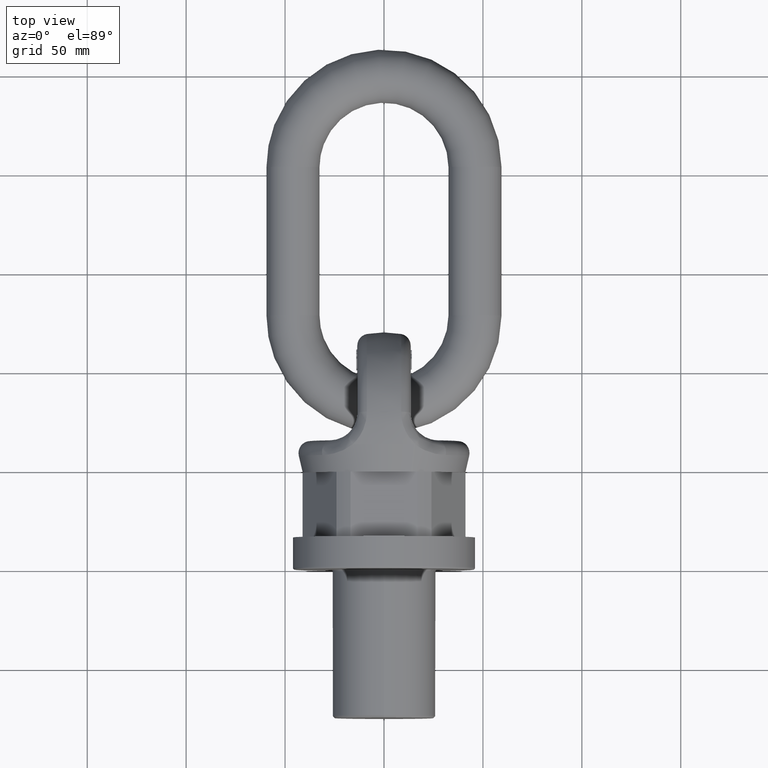
[diagram: clean part render]
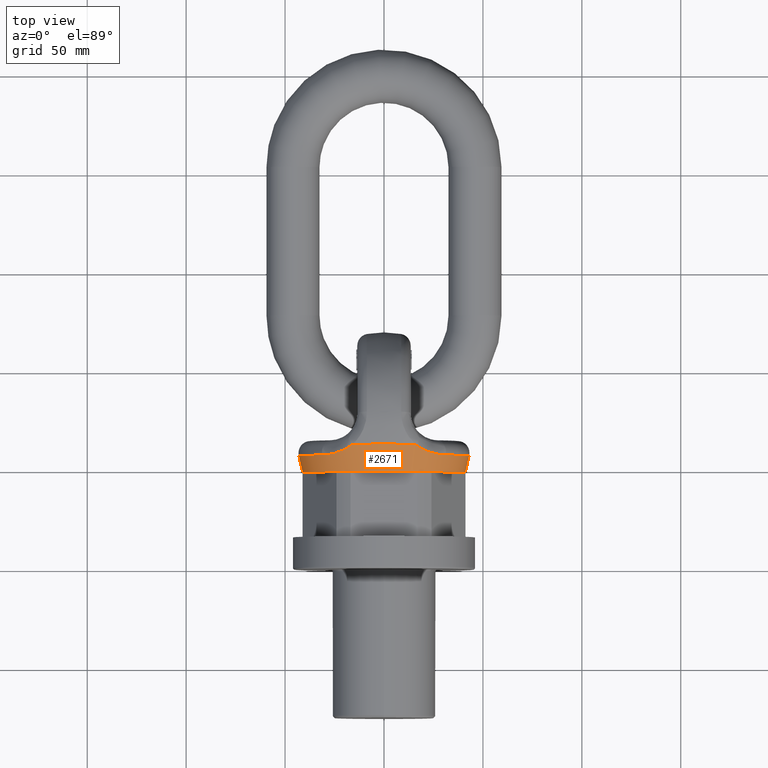
[diagram: same view with one face highlighted and labeled with its STEP entity id]
A machine part, top view. The second image highlights one B-rep face of the part: STEP entity #2671.
In plain terms, the highlighted conical surface has half-angle 14.152 deg.
Its self-contained STEP definition (entity closure, byte-faithful):
#361=B_SPLINE_CURVE_WITH_KNOTS('',3,(#7058,#7059,#7060,#7061,#7062,#7063),
 .UNSPECIFIED.,.F.,.F.,(4,2,4),(0.,0.5,1.),.UNSPECIFIED.);
#362=B_SPLINE_CURVE_WITH_KNOTS('',3,(#7065,#7066,#7067,#7068,#7069,#7070),
 .UNSPECIFIED.,.F.,.F.,(4,2,4),(0.,0.5,1.),.UNSPECIFIED.);
#363=B_SPLINE_CURVE_WITH_KNOTS('',3,(#7074,#7075,#7076,#7077,#7078,#7079),
 .UNSPECIFIED.,.F.,.F.,(4,2,4),(0.,0.5,1.),.UNSPECIFIED.);
#364=B_SPLINE_CURVE_WITH_KNOTS('',3,(#7080,#7081,#7082,#7083,#7084,#7085),
 .UNSPECIFIED.,.F.,.F.,(4,2,4),(0.,0.5,1.),.UNSPECIFIED.);
#1795=CONICAL_SURFACE('',#5661,41.1362066797608,14.1515047841339);
#2671=ADVANCED_FACE('',(#3016,#3017),#1795,.T.);
#3016=FACE_BOUND('',#3106,.T.);
#3017=FACE_BOUND('',#3107,.T.);
#3106=EDGE_LOOP('',(#3530));
#3107=EDGE_LOOP('',(#3531,#3532,#3533,#3534,#3535,#3536,#3537,#3538));
#3530=ORIENTED_EDGE('',*,*,#5074,.F.);
#3531=ORIENTED_EDGE('',*,*,#5075,.T.);
#3532=ORIENTED_EDGE('',*,*,#5066,.T.);
#3533=ORIENTED_EDGE('',*,*,#5076,.T.);
#3534=ORIENTED_EDGE('',*,*,#5077,.T.);
#3535=ORIENTED_EDGE('',*,*,#5078,.T.);
#3536=ORIENTED_EDGE('',*,*,#5070,.T.);
#3537=ORIENTED_EDGE('',*,*,#5079,.T.);
#3538=ORIENTED_EDGE('',*,*,#5080,.T.);
#4653=VERTEX_POINT('',#7019);
#4654=VERTEX_POINT('',#7020);
#4657=VERTEX_POINT('',#7036);
#4658=VERTEX_POINT('',#7038);
#4661=VERTEX_POINT('',#7056);
#4662=VERTEX_POINT('',#7064);
#4663=VERTEX_POINT('',#7071);
#4664=VERTEX_POINT('',#7073);
#4665=VERTEX_POINT('',#7086);
#5066=EDGE_CURVE('',#4653,#4654,#5561,.T.);
#5070=EDGE_CURVE('',#4658,#4657,#5563,.T.);
#5074=EDGE_CURVE('',#4661,#4661,#5565,.T.);
#5075=EDGE_CURVE('',#4662,#4653,#361,.T.);
#5076=EDGE_CURVE('',#4654,#4663,#362,.T.);
#5077=EDGE_CURVE('',#4663,#4664,#5566,.T.);
#5078=EDGE_CURVE('',#4664,#4658,#363,.T.);
#5079=EDGE_CURVE('',#4657,#4665,#364,.T.);
#5080=EDGE_CURVE('',#4665,#4662,#5567,.T.);
#5561=CIRCLE('',#5652,44.6040210296982);
#5563=CIRCLE('',#5654,44.6040210296982);
#5565=CIRCLE('',#5657,41.1362066797608);
#5566=CIRCLE('',#5659,43.2877245192613);
#5567=CIRCLE('',#5660,43.2877245192613);
#5652=AXIS2_PLACEMENT_3D('',#7018,#5967,#5968);
#5654=AXIS2_PLACEMENT_3D('',#7037,#5971,#5972);
#5657=AXIS2_PLACEMENT_3D('',#7055,#5977,#5978);
#5659=AXIS2_PLACEMENT_3D('',#7072,#5981,#5982);
#5660=AXIS2_PLACEMENT_3D('',#7087,#5983,#5984);
#5661=AXIS2_PLACEMENT_3D('',#7088,#5985,#5986);
#5967=DIRECTION('',(0.,-1.,0.));
#5968=DIRECTION('',(0.,0.,-1.));
#5971=DIRECTION('',(0.,-1.,0.));
#5972=DIRECTION('',(0.,0.,-1.));
#5977=DIRECTION('',(0.,-1.,0.));
#5978=DIRECTION('',(0.,0.,-1.));
#5981=DIRECTION('',(0.,-1.,0.));
#5982=DIRECTION('',(0.,0.,-1.));
#5983=DIRECTION('',(0.,-1.,0.));
#5984=DIRECTION('',(-2.34291072916505E-15,0.,1.));
#5985=DIRECTION('',(0.,1.,0.));
#5986=DIRECTION('',(0.,-2.36600490349064E-16,1.));
#7018=CARTESIAN_POINT('',(0.,62.7536091130426,0.));
#7019=CARTESIAN_POINT('',(-15.7785054320884,62.7536091130426,-41.7199887146116));
#7020=CARTESIAN_POINT('',(15.7785054320885,62.7536091130426,-41.7199887146116));
#7036=CARTESIAN_POINT('',(-15.7785054320886,62.7536091130426,41.7199887146115));
#7037=CARTESIAN_POINT('',(0.,62.7536091130426,0.));
#7038=CARTESIAN_POINT('',(15.7785054320885,62.7536091130426,41.7199887146116));
#7055=CARTESIAN_POINT('',(0.,49.,0.));
#7056=CARTESIAN_POINT('',(0.,49.,-41.1362066797608));
#7058=CARTESIAN_POINT('',(-31.1922745684475,57.5330794495273,-30.0144815264571));
#7059=CARTESIAN_POINT('',(-28.8200770798436,57.5330794495273,-32.4797660035483));
#7060=CARTESIAN_POINT('',(-26.2281895916773,57.8552211187232,-34.6962955908888));
#7061=CARTESIAN_POINT('',(-20.9018926076617,59.4991765414386,-38.6132982412755));
#7062=CARTESIAN_POINT('',(-18.2093249265365,60.8089074692508,-40.2764223259881));
#7063=CARTESIAN_POINT('',(-15.7785054320884,62.7536091130426,-41.7199887146116));
#7064=CARTESIAN_POINT('',(-31.1922745684475,57.5330794495273,-30.0144815264571));
#7065=CARTESIAN_POINT('',(15.7785054320885,62.7536091130426,-41.7199887146116));
#7066=CARTESIAN_POINT('',(18.2169836139494,60.8027803742381,-40.2718741381216));
#7067=CARTESIAN_POINT('',(20.9172362149262,59.4919223788236,-38.6035820851585));
#7068=CARTESIAN_POINT('',(26.2545613026524,57.849619660177,-34.6753216617466));
#7069=CARTESIAN_POINT('',(28.8155881200077,57.5330794495273,-32.4844311138753));
#7070=CARTESIAN_POINT('',(31.1922745684476,57.5330794495273,-30.014481526457));
#7071=CARTESIAN_POINT('',(31.1922745684476,57.5330794495273,-30.014481526457));
#7072=CARTESIAN_POINT('',(0.,57.5330794495273,0.));
#7073=CARTESIAN_POINT('',(31.1922745684476,57.5330794495273,30.014481526457));
#7074=CARTESIAN_POINT('',(31.1922745684476,57.5330794495273,30.014481526457));
#7075=CARTESIAN_POINT('',(28.8200770798437,57.5330794495273,32.4797660035482));
#7076=CARTESIAN_POINT('',(26.2281895916774,57.8552211187232,34.6962955908888));
#7077=CARTESIAN_POINT('',(20.9018926076618,59.4991765414386,38.6132982412754));
#7078=CARTESIAN_POINT('',(18.2093249265366,60.8089074692508,40.276422325988));
#7079=CARTESIAN_POINT('',(15.7785054320885,62.7536091130426,41.7199887146116));
#7080=CARTESIAN_POINT('',(-15.7785054320886,62.7536091130426,41.7199887146115));
#7081=CARTESIAN_POINT('',(-18.2169836139495,60.8027803742381,40.2718741381215));
#7082=CARTESIAN_POINT('',(-20.9172362149263,59.4919223788236,38.6035820851584));
#7083=CARTESIAN_POINT('',(-26.2545613026525,57.849619660177,34.6753216617466));
#7084=CARTESIAN_POINT('',(-28.8155881200078,57.5330794495273,32.4844311138752));
#7085=CARTESIAN_POINT('',(-31.1922745684476,57.5330794495273,30.014481526457));
#7086=CARTESIAN_POINT('',(-31.1922745684476,57.5330794495273,30.014481526457));
#7087=CARTESIAN_POINT('',(0.,57.5330794495273,0.));
#7088=CARTESIAN_POINT('',(0.,49.,0.));